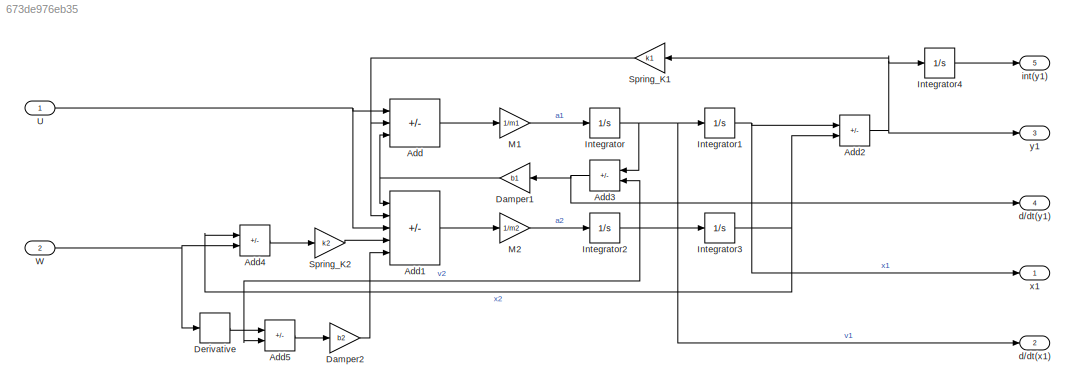
MODEL slx_673de976eb35
KIND model
CONFIG AbsTol = auto
CONFIG EnableMultiTasking = off
CONFIG FixedStep = auto
CONFIG MaxStep = auto
CONFIG MinStep = auto
CONFIG RelTol = 1e-3
CONFIG SampleTimeConstraint = Unconstrained
CONFIG SolverName = VariableStepAuto
CONFIG StartTime = 0.0
CONFIG StopTime = 10.0
WORKSPACE source: mxarray member
WORKSPACE b1 = 350
WORKSPACE b2 = 15020
WORKSPACE k1 = 80000
WORKSPACE k2 = 500000
WORKSPACE m1 = 2500
WORKSPACE m2 = 320
BLOCK [Sum] Add
  IconShape = rectangular
  Inputs = +--
  Ports = [3, 1]
BLOCK [Sum] Add1
  IconShape = rectangular
  Inputs = ++-++
  Ports = [5, 1]
BLOCK [Sum] Add2
  IconShape = rectangular
  Inputs = +-
  Ports = [2, 1]
BLOCK [Sum] Add3
  IconShape = rectangular
  Inputs = +-
  NameLocation = top
  Ports = [2, 1]
BLOCK [Sum] Add4
  IconShape = rectangular
  Inputs = -+
  Ports = [2, 1]
BLOCK [Sum] Add5
  IconShape = rectangular
  Inputs = +-
  Ports = [2, 1]
BLOCK [Gain] Damper1
  Gain = b1
  NameLocation = top
BLOCK [Gain] Damper2
  Gain = b2
BLOCK [Derivative] Derivative
BLOCK [Integrator] Integrator
  Ports = [1, 1]
BLOCK [Integrator] Integrator1
  Ports = [1, 1]
BLOCK [Integrator] Integrator2
  Ports = [1, 1]
BLOCK [Integrator] Integrator3
  Ports = [1, 1]
BLOCK [Integrator] Integrator4
  Ports = [1, 1]
BLOCK [Gain] M1
  Gain = 1/m1
BLOCK [Gain] M2
  Gain = 1/m2
BLOCK [Gain] Spring_K1
  Gain = k1
  NameLocation = top
BLOCK [Gain] Spring_K2
  Gain = k2
BLOCK [Inport] U
  OutDataTypeStr = double
  PortDimensions = 1
  SampleTime = 0
  SamplingMode = Sample based
  SignalType = real
BLOCK [Inport] W
  OutDataTypeStr = double
  Port = 2
  PortDimensions = 1
  SampleTime = 0
  SamplingMode = Sample based
  SignalType = real
BLOCK [Outport] d//dt(x1)
  OutDataTypeStr = double
  Port = 2
  PortDimensions = 1
  SampleTime = 0
  SamplingMode = Sample based
  SignalType = real
BLOCK [Outport] d//dt(y1)
  OutDataTypeStr = double
  Port = 4
  PortDimensions = 1
  SampleTime = 0
  SamplingMode = Sample based
  SignalType = real
BLOCK [Outport] int(y1)
  OutDataTypeStr = double
  Port = 5
  PortDimensions = 1
  SampleTime = 0
  SamplingMode = Sample based
  SignalType = real
BLOCK [Outport] x1
  OutDataTypeStr = double
  PortDimensions = 1
  SampleTime = 0
  SamplingMode = Sample based
  SignalType = real
BLOCK [Outport] y1
  OutDataTypeStr = double
  Port = 3
  PortDimensions = 1
  SampleTime = 0
  SamplingMode = Sample based
  SignalType = real
LINE Add1:1 -> M2:1
NET Add2:1 -> Integrator4:1, Spring_K1:1, y1:1
NET Add3:1 -> Damper1:1, d//dt(y1):1
LINE Add4:1 -> Spring_K2:1
LINE Add5:1 -> Damper2:1
LINE Add:1 -> M1:1
NET Damper1:1 -> Add1:1, Add:3
LINE Damper2:1 -> Add1:5
LINE Derivative:1 -> Add5:1
NET Integrator1:1 -> Add2:1, x1:1
NET Integrator2:1 -> Add3:2, Add5:2, Integrator3:1
NET Integrator3:1 -> Add2:2, Add4:1
LINE Integrator4:1 -> int(y1):1
NET Integrator:1 -> Add3:1, Integrator1:1, d//dt(x1):1
LINE M1:1 -> Integrator:1
LINE M2:1 -> Integrator2:1
NET Spring_K1:1 -> Add1:2, Add:2
LINE Spring_K2:1 -> Add1:4
NET U:1 -> Add1:3, Add:1
NET W:1 -> Add4:2, Derivative:1
note: NET lines group one-source signal fan-out (src -> all destinations, sorted); 1:1 wires keep LINE
